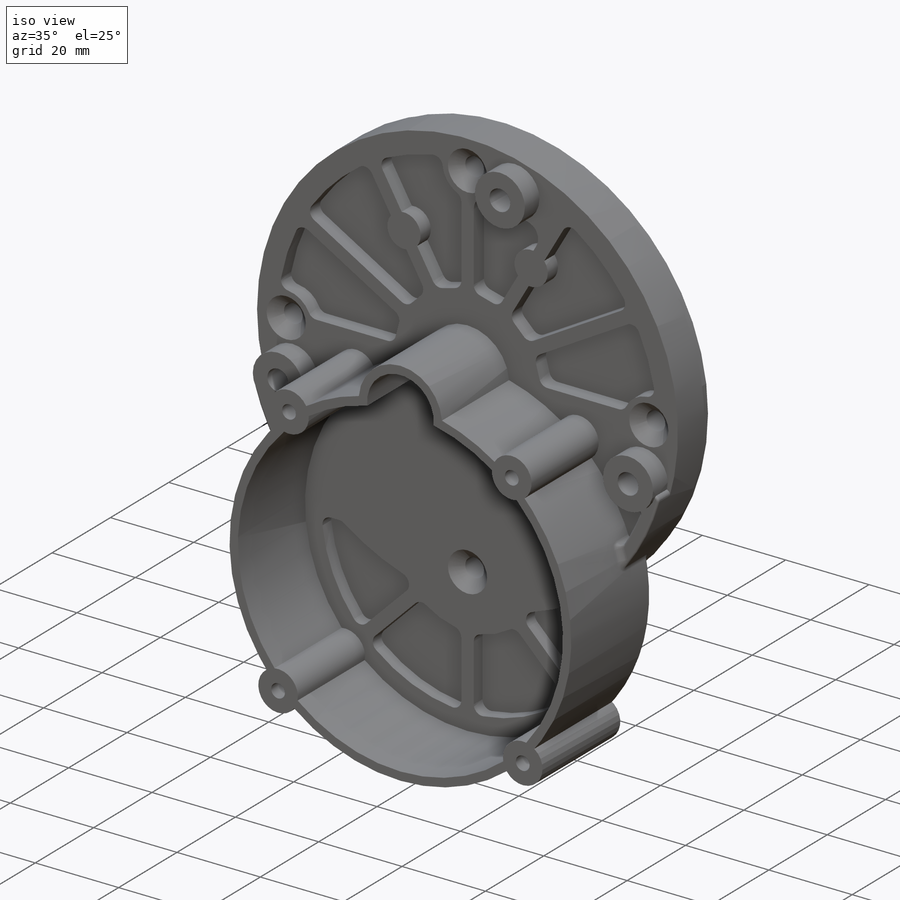
[diagram: iso view]
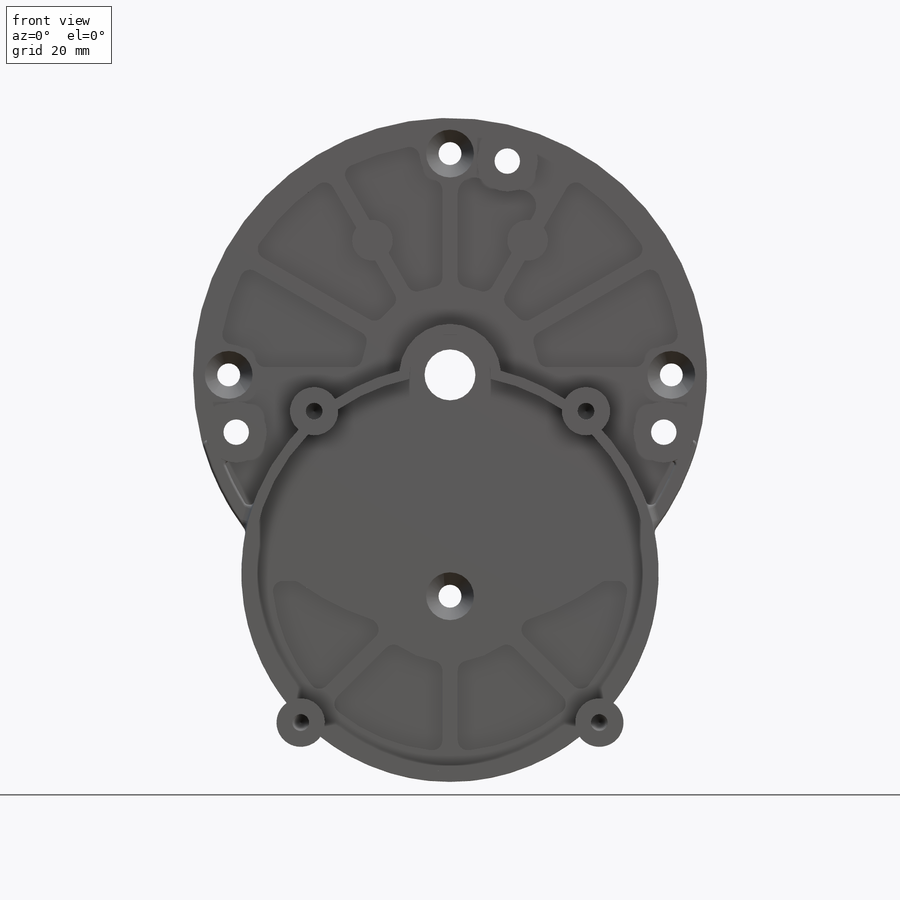
[diagram: front view]
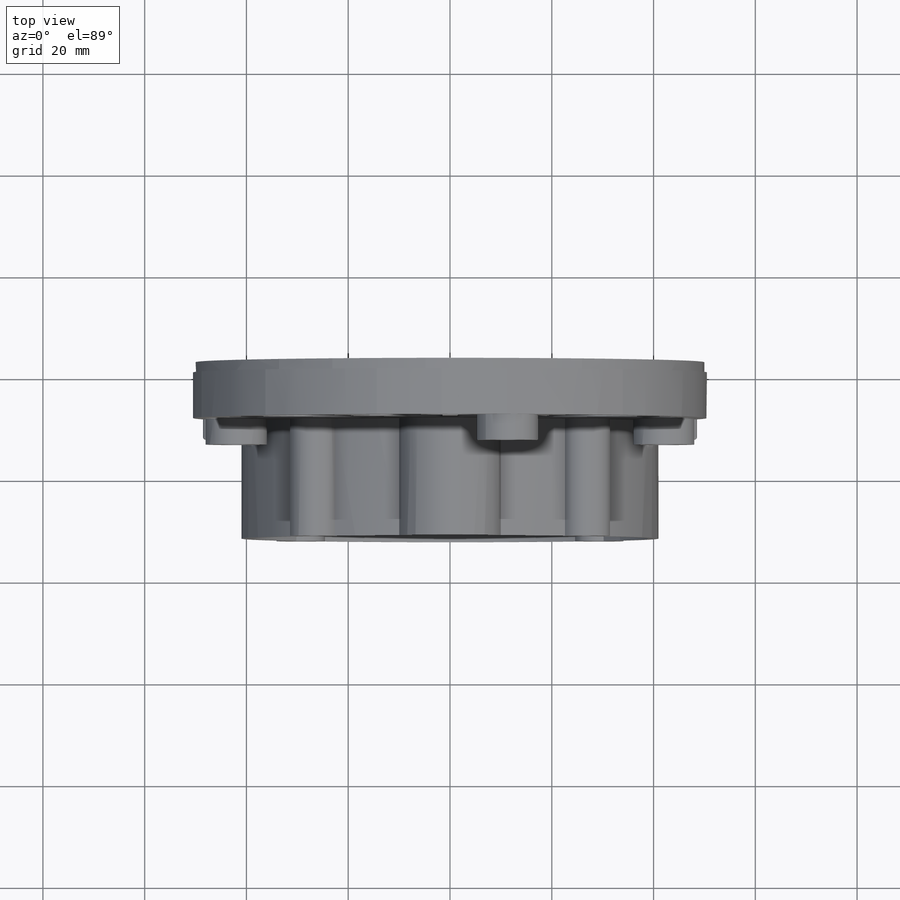
[diagram: top view]
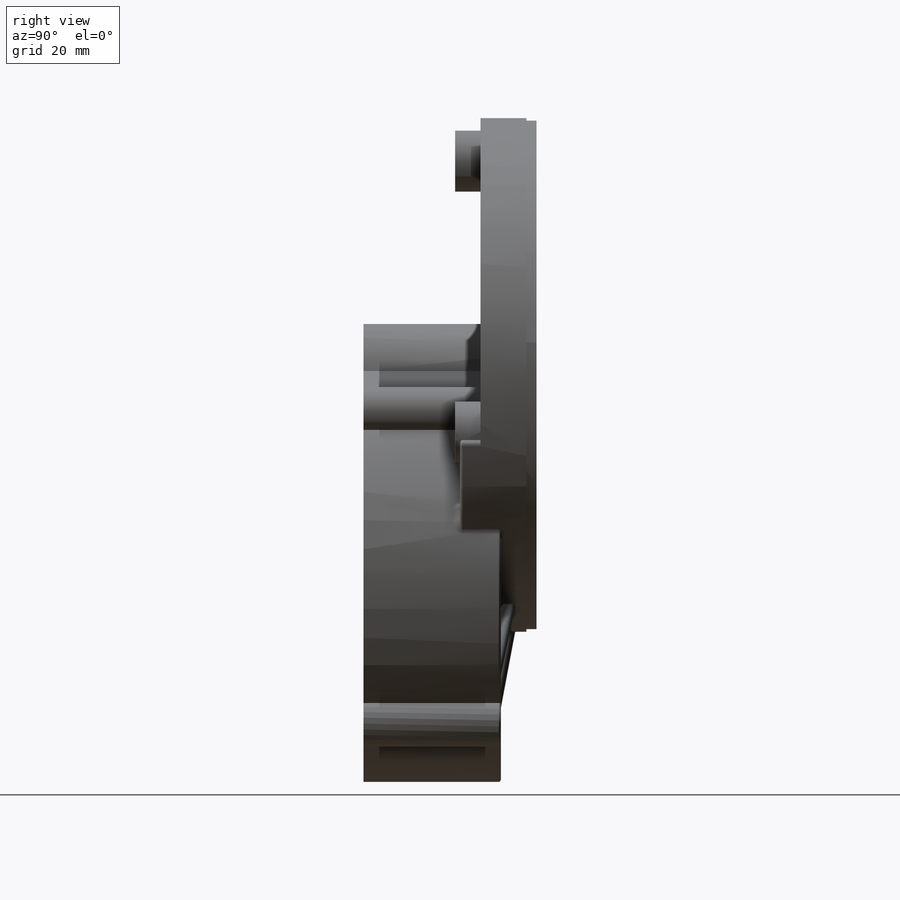
[diagram: right view]
SOLIDWORKS PART (.sldprt)
format: sldprt  version: not decoded by parser v0  size: 1,248,256 bytes
history: native  units: mm
features: sketch x23, fillet x10, extrude x6, cut_extrude x4, hole x4, chamfer x3, material x1, mirror x1 (+11 scaffold rows collapsed)
feature tree (63):
  scaffold x11  (default folders/planes/origin — collapsed)
  material  "Material <not specified>"
  sketch  "Sketch1"  dims[c1.D1=101.0mm c1.D2=111.0mm c1.D3=20.0mm c1.D5=82.0mm c1.D6=25.0mm c1.D7=41.0mm c1.D8=35.0mm c1.D9=70.0mm c1.D10=87.0mm c1.D12=9.0mm c1.D13=4.5mm c1.D17=6.0mm c1.D18=12.0mm c1.D19=4.5mm c1.D21=5.5mm c1.D22=9.5mm c1.D24=5.5mm c1.D25=9.5mm c1.D29=41.0mm c1.D30=4.3mm c2.D6=24.5mm c2.D33=14.0mm c2.D34=12.5mm c2.D35=8.0mm c2.D36=6.0mm c2.D37=6.0mm c2.D38=17.5mm c2.D39=10.0mm c2.D40=6.0mm c2.D49=53.0mm c2.D54=8.0mm c2.D4=39.0mm c2.D15=90.0deg c2.D16=55.5mm c3.D16=15.0deg c3.D21=120.0deg c4.D16=~49.078927mm c5.D16=40.0deg c5.D20=55.5mm c6.D20=15.0deg c6.D23=~35.336698mm c7.D23=45.0deg c7.D26=41.5mm c7.D27=1.5mm c7.D29=~24.128008mm c8.D29=20.0deg c8.D31=18.8mm c8.D41=~39.451215mm c9.D41=30.0deg c9.D42=1.5mm c9.D43=1.5mm c9.D45=30.0deg c9.D46=~39.244426mm c10.D46=45.0deg c10.D47=55.0mm c10.D48=~62.115119mm c11.D48=25.5deg c11.D50=2.5mm c11.D51=~8.084668mm c12.D51=25.0deg c12.D52=50.5mm c13.D52=60.0deg c13.D53=20.0mm c13.D56=60.0deg c13.D11=5.0mm c14.D52=2.5mm c14.D14=3.0 c14.D28=8.0 c14.D32=9.0 c14.D44=5.0 c14.D55=2.0]
  sketch  "Sketch2"
  extrude  "Boss-Extrude1"  Depth=9mm
  sketch  "Sketch3"  dims[D1=6.0mm D2=6.0mm]
  cut_extrude  "Cut-Extrude1"  Depth=3.5mm
  fillet  "Fillet1"  Radius=2mm
  sketch  "Sketch4"
  extrude  "Boss-Extrude2"  Depth=5mm
  sketch  "Sketch5"
  extrude  "Boss-Extrude3"  Depth=4mm
  sketch  "Sketch6"  dims[c1.D1=50.5mm c1.D9=98.0mm c2.D1=15.0mm c2.D2=29.0mm c2.D3=1.25mm c2.D4=1.25mm c2.D5=1.25mm c2.D6=1.25mm c2.D7=1.25mm c2.D8=1.25mm]
  extrude  "Boss-Extrude4"  Depth=3mm
  chamfer  "Chamfer1"  Distance=3mm
  chamfer  "Chamfer2"  Distance=3mm
  chamfer  "Chamfer3"  Distance=3mm
  fillet  "Fillet2"  Radius=1.25mm
  fillet  "Fillet3"  Radius=1mm
  fillet  "Fillet5"  Radius=0.5mm
  sketch  "Sketch16"  dims[D1=3.0mm]
  extrude  "Boss-Extrude5"  Depth=4mm
  mirror  "Mirror1"
  fillet  "Fillet11"  Radius=1mm
  fillet  "Fillet13"  Radius=0.5mm
  fillet  "Fillet14"  Radius=1mm
  fillet  "Fillet15"  Radius=0.5mm
  fillet  "Fillet16"  Radius=1.5mm
  sketch  "Sketch7"
  hole  "M4x0.7 Tapped Hole1"  Diameter=3.3mm Depth=15mm
  sketch  "Sketch9"
  sketch  "Sketch8"  dims[hole-wizard template sketch: 47 standard entries collapsed; hole parameters kept: c15.Tap Drill Depth=15.0mm c15.D3=~14.816244mm c15.Drill Angle=118.0deg]
  sketch  "Sketch10"
  hole  "CSK for M4 Flat Head Machine Screw1"  Diameter=4.5mm Depth=9mm
  sketch  "Sketch12"
  sketch  "Sketch11"  dims[hole-wizard template sketch: 55 standard entries collapsed; hole parameters kept: c17.Thru Hole Depth=9.0mm c17.Near C'Sink Dia.=9.4mm c17.D4=~3.666174mm c17.Near C'Sink Angle=90.0deg]
  sketch  "Sketch13"
  hole  "M6x1.0 Tapped Hole1"  Diameter=5mm Depth=14mm
  sketch  "Sketch15"
  sketch  "Sketch14"  dims[hole-wizard template sketch: 59 standard entries collapsed; hole parameters kept: c18.Thread Major Dia.=5.0mm c18.Thru Tap Drill Depth=14.0mm]
  sketch  "Sketch17"  dims[D1=2.0mm D2=2.0mm]
  cut_extrude  "Cut-Extrude2"  Depth=23mm
  sketch  "Sketch18"  dims[c1.D1=10.0mm c1.D2=10.0mm c1.D3=10.0mm c2.D2=1.5mm c2.D3=1.5mm c2.D1=0.0mm]
  cut_extrude  "Cut-Extrude3"  Depth=3mm
  fillet  "Fillet17"  Radius=2mm
  sketch  "Sketch19"
  cut_extrude  "Cut-Extrude4"  [1 undecoded]
  sketch  "Sketch22"
  hole  "CSK for M4 Flat Head Machine Screw2"  Diameter=4.5mm Depth=9mm
  sketch  "Sketch24"
  sketch  "Sketch23"  dims[hole-wizard template sketch: 55 standard entries collapsed; hole parameters kept: c17.Thru Hole Depth=9.0mm c17.Near C'Sink Dia.=9.4mm c17.D4=~3.666174mm c17.Near C'Sink Angle=90.0deg]
  sketch  "Sketch25"  dims[D1=0.5mm]
  extrude  "Boss-Extrude6"  Depth=2mm
decode coverage: 37 of 51 modeling features carry decoded parameters
note: ~ marks probable driven/reference dimensions
note: 1 parameter value undecoded
summary: Diameter pulled from absorbed wizard sketch
note: suppression state not decoded; provenance and decode notes live in map.json
